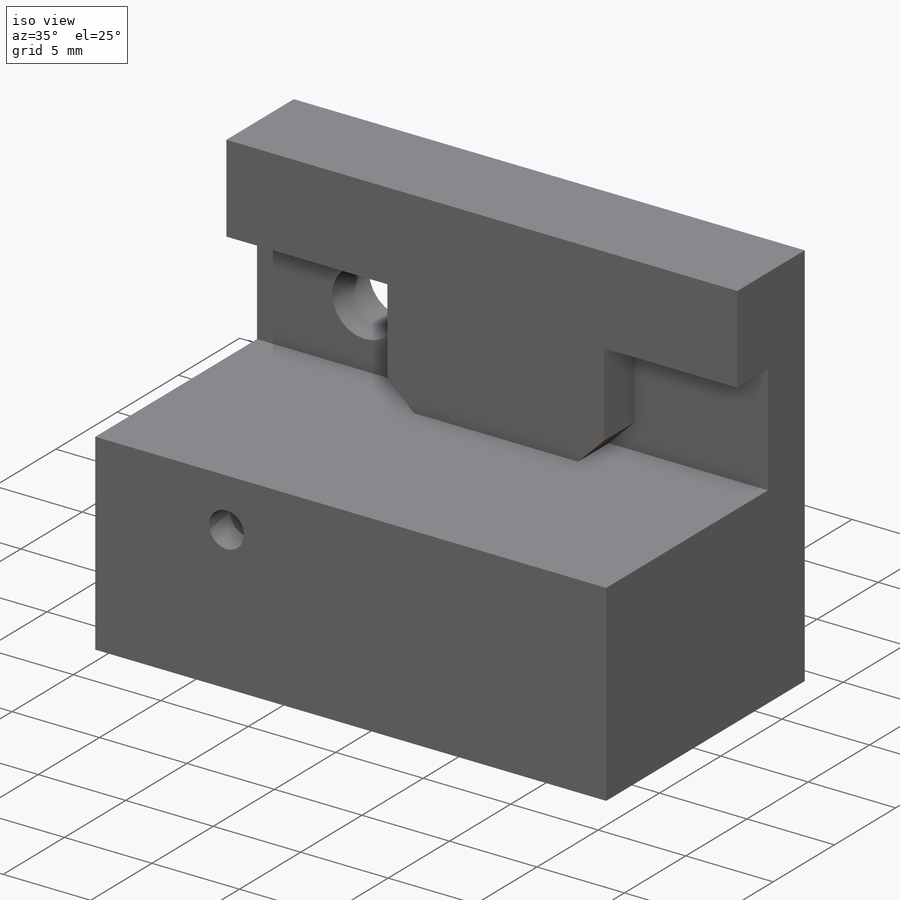
[diagram: iso view]
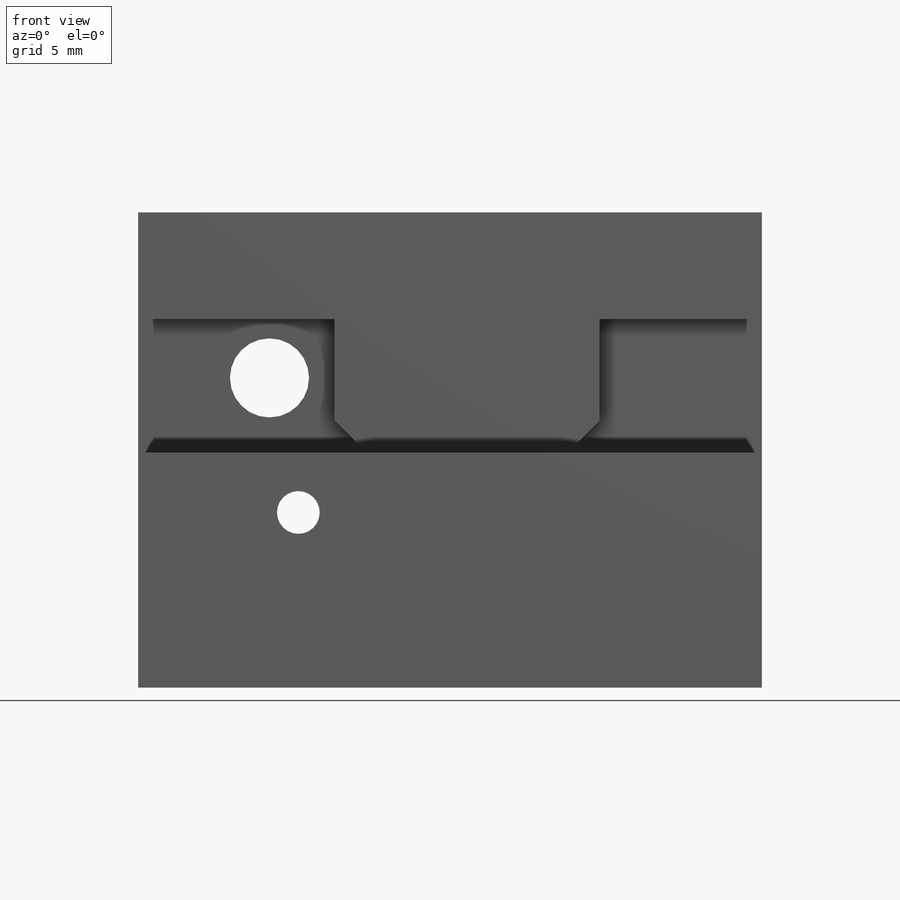
[diagram: front view]
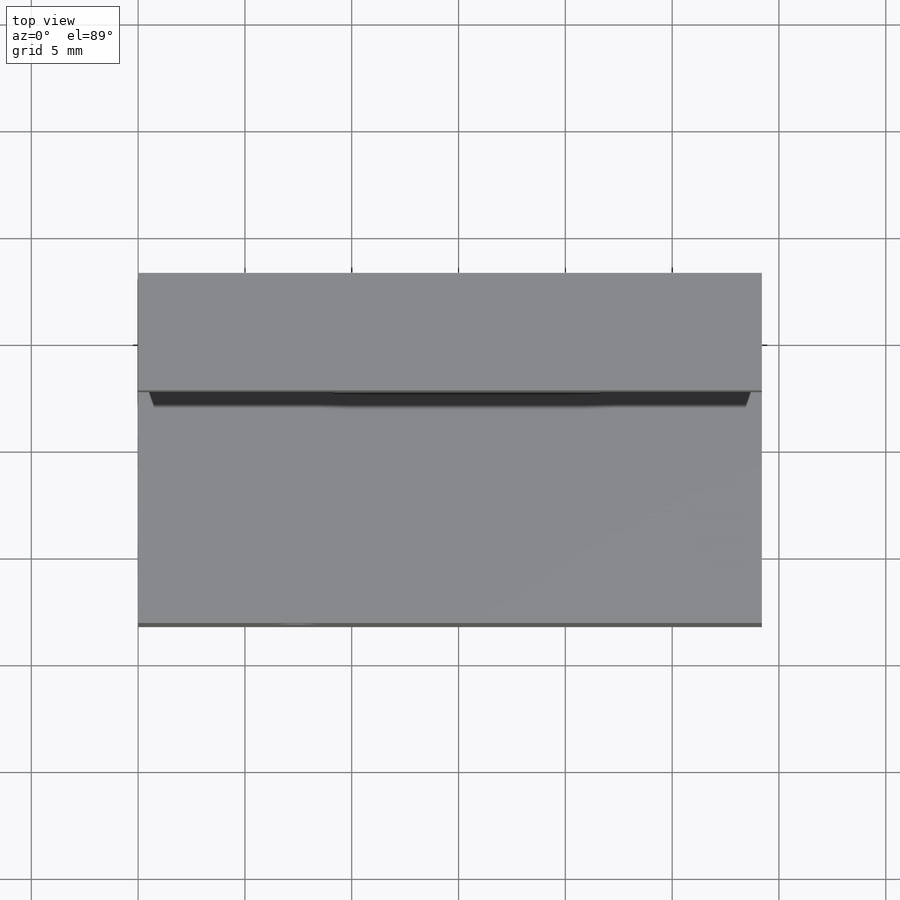
[diagram: top view]
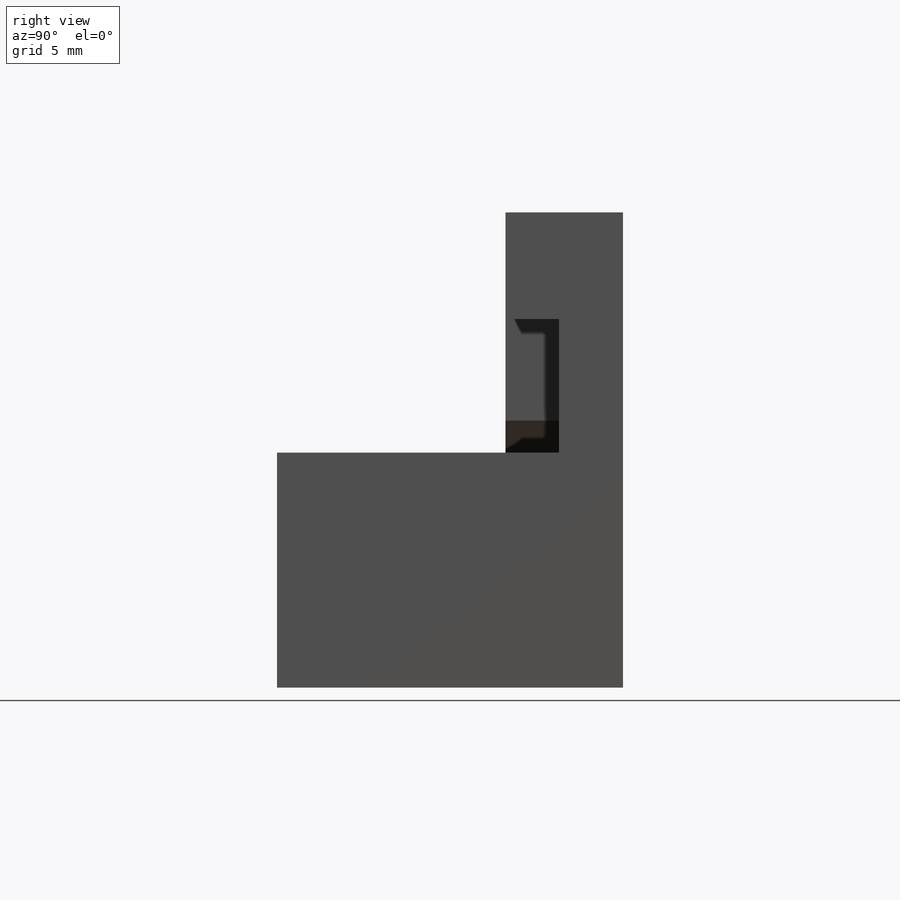
[diagram: right view]
SOLIDWORKS PART (.sldprt)
format: sldprt  version: not decoded by parser v0  size: 196,096 bytes
history: native  units: mm
features: sketch x4, extrude x3, material x1, cut_extrude x1 (+13 scaffold rows collapsed)
feature tree (22):
  scaffold x13  (default folders/planes/origin — collapsed)
  material  "Material <not specified>"
  sketch  "Sketch1"  dims[D1=2.0mm D6=2.0mm D2=29.2mm D3=12.0mm D4=5.1mm D5=1.7mm D7=11.0mm D8=10.5mm D9=9.25mm]
  extrude  "Boss-Extrude1"  Depth=13.2mm
  sketch  "Sketch6"  dims[D1=3.7mm]
  cut_extrude  "Cut-Extrude3"  Depth=11.5mm
  sketch  "Sketch7"  dims[D1=5.0mm]
  extrude  "Boss-Extrude4"  Depth=2.5mm
  sketch  "Sketch8"  dims[D1=3.7mm D6=3.7mm D2=29.2mm D3=12.0mm D4=5.1mm D5=1.7mm D7=10.75mm D8=10.5mm D9=9.25mm]
  extrude  "Boss-Extrude5"  Depth=3mm
decode coverage: 8 of 8 modeling features carry decoded parameters
note: suppression state not decoded; provenance and decode notes live in map.json
